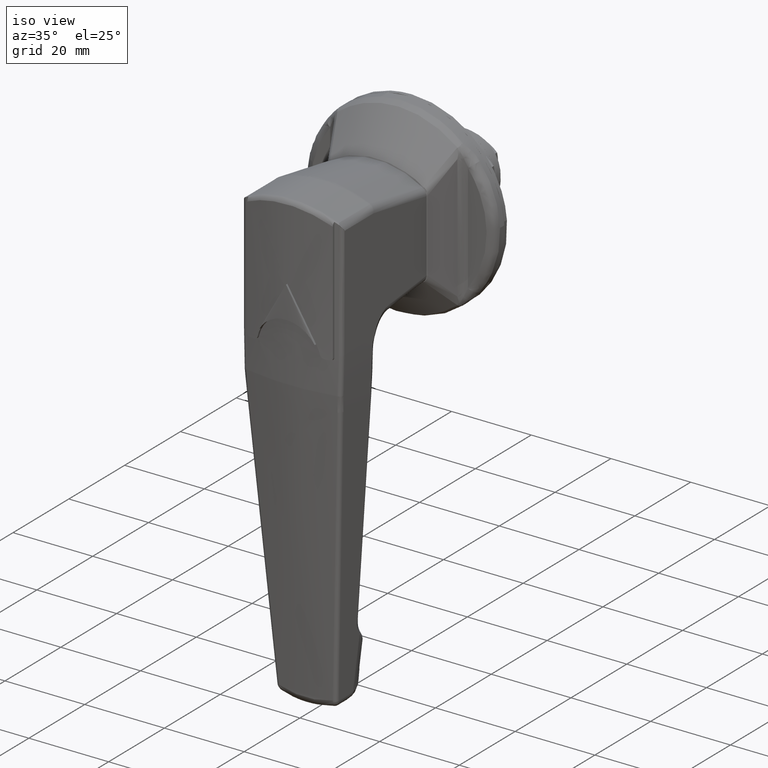
[diagram: clean part render]
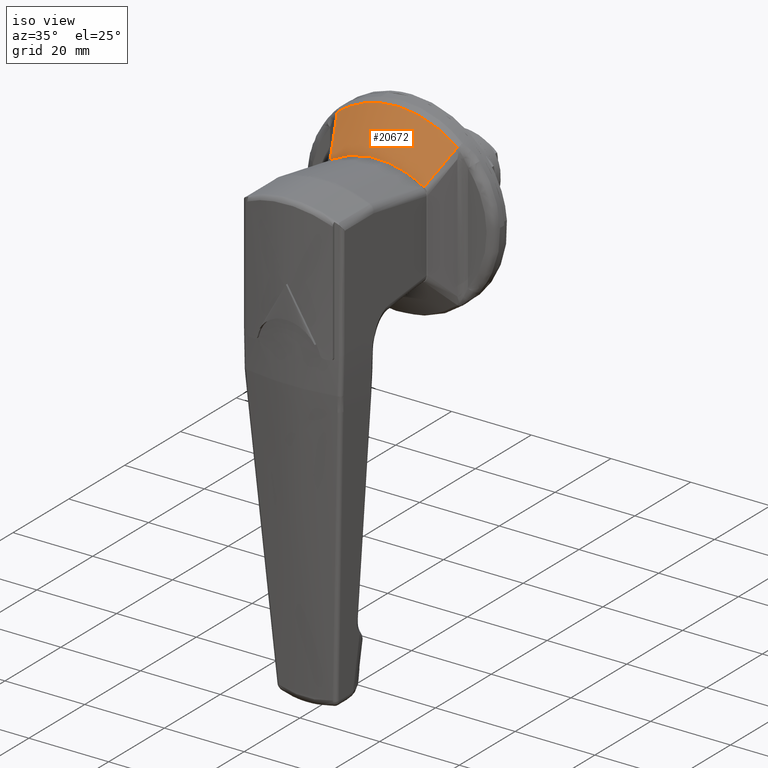
[diagram: same view with one face highlighted and labeled with its STEP entity id]
A machine part, iso view. The second image highlights one B-rep face of the part: STEP entity #20672.
In plain terms, the highlighted face is a freeform B-spline surface patch.
Its self-contained STEP definition (entity closure, byte-faithful):
#17228=CARTESIAN_POINT('',(-12.317423571794420,-11.742579177795520,10.773186300902680));
#17229=VERTEX_POINT('',#17228);
#17426=CARTESIAN_POINT('',(-12.317423571793420,11.742579177780961,10.773186300912499));
#17427=VERTEX_POINT('',#17426);
#17481=CARTESIAN_POINT('',(-12.317423571793420,11.742579177780961,10.773186300912480));
#17482=CARTESIAN_POINT('',(-12.321921307297879,10.860520240749860,11.322452460470220));
#17483=CARTESIAN_POINT('',(-12.325578662781210,9.949014942688306,11.803118988884620));
#17484=CARTESIAN_POINT('',(-12.331659711343731,8.070478089366224,12.635092871386201));
#17485=CARTESIAN_POINT('',(-12.334077562979489,7.103437036236132,12.986378139847030));
#17486=CARTESIAN_POINT('',(-12.336194610551139,5.983743178382404,13.307552710681570));
#17487=CARTESIAN_POINT('',(-12.336421493373271,5.858888674861695,13.342204204442460));
#17488=CARTESIAN_POINT('',(-12.336859048986550,5.608284770445630,13.409422328074839));
#17489=CARTESIAN_POINT('',(-12.337069752711660,5.482504639933909,13.441994153133431));
#17490=CARTESIAN_POINT('',(-12.337676038689670,5.105207246153738,13.536220615238850));
#17491=CARTESIAN_POINT('',(-12.338046654549730,4.853278270121542,13.594513360971780));
#17492=CARTESIAN_POINT('',(-12.339064686496339,4.096313467018519,13.755979314511180));
#17493=CARTESIAN_POINT('',(-12.339618768890370,3.590101573188127,13.845760826779211));
#17494=CARTESIAN_POINT('',(-12.340943189073700,2.066805871487515,14.062042213509820));
#17495=CARTESIAN_POINT('',(-12.341382265058600,1.045090721286919,14.135805461800370));
#17496=CARTESIAN_POINT('',(-12.341389583350249,-0.497092434385676,14.137017111133630));
#17497=CARTESIAN_POINT('',(-12.341281692835810,-1.012763199704537,14.119091320399230));
#17498=CARTESIAN_POINT('',(-12.341006680330070,-1.659384760686913,14.073533295862029));
#17499=CARTESIAN_POINT('',(-12.340944563197100,-1.788939796435680,14.063250452528990));
#17500=CARTESIAN_POINT('',(-12.340806465748720,-2.047507341771729,14.040422508751410));
#17501=CARTESIAN_POINT('',(-12.340578588088951,-2.434502867798404,14.002799197559501));
#17502=CARTESIAN_POINT('',(-12.340288604093830,-2.818961204837026,13.955150978390771));
#17503=CARTESIAN_POINT('',(-12.339182288289560,-4.094957003174656,13.774465676083221));
#17504=CARTESIAN_POINT('',(-12.337859598567080,-5.098155097342642,13.560382340863370));
#17505=CARTESIAN_POINT('',(-12.335076907697930,-6.577292862731655,13.137873484984249));
#17506=CARTESIAN_POINT('',(-12.334012275020189,-7.066041973881075,12.980059910308880));
#17507=CARTESIAN_POINT('',(-12.332189098541861,-7.792627682096576,12.717507293532860));
#17508=CARTESIAN_POINT('',(-12.331543769540691,-8.033731961105060,12.625679252005940));
#17509=CARTESIAN_POINT('',(-12.330173684957110,-8.513727020456962,12.433277390320500));
#17510=CARTESIAN_POINT('',(-12.329448481678160,-8.752757135842554,12.332641786327990));
#17511=CARTESIAN_POINT('',(-12.327915235814430,-9.227951979443985,12.122724838989480));
#17512=CARTESIAN_POINT('',(-12.327108818827940,-9.463629113999277,12.013664815222519));
#17513=CARTESIAN_POINT('',(-12.325411506828940,-9.931126813723937,11.787307537785489));
#17514=CARTESIAN_POINT('',(-12.324520516134241,-10.162958267632449,11.669999115844760));
#17515=CARTESIAN_POINT('',(-12.321716718047560,-10.851462792194271,11.306249432435891));
#17516=CARTESIAN_POINT('',(-12.319672425216240,-11.301552519618671,11.047817630658329));
#17517=CARTESIAN_POINT('',(-12.317423571794420,-11.742579177795520,10.773186300902680));
#17518=B_SPLINE_CURVE_WITH_KNOTS('',3,(#17481,#17482,#17483,#17484,#17485,#17486,#17487,#17488,#17489,#17490,#17491,#17492,#17493,#17494,#17495,#17496,#17497,#17498,#17499,#17500,#17501,#17502,#17503,#17504,#17505,#17506,#17507,#17508,#17509,#17510,#17511,#17512,#17513,#17514,#17515,#17516,#17517),.UNSPECIFIED.,.F.,.U.,(4,2,2,2,2,2,2,2,2,2,1,2,2,2,2,2,2,2,4),(0.0,0.125000000000000,0.250000000000000,0.265625000000000,0.281250000000000,0.312500000000000,0.375000000000000,0.500000000000000,0.562500000000000,0.578125000000000,0.593750000000000,0.625000000000000,0.750000000000000,0.812500000000000,0.843750000000000,0.875000000000000,0.906250000000000,0.937500000000000,1.0),.UNSPECIFIED.);
#17519=EDGE_CURVE('',#17427,#17229,#17518,.T.);
#19419=CARTESIAN_POINT('',(-5.092936571871739,15.064256327151449,17.880553227126750));
#19420=VERTEX_POINT('',#19419);
#19698=CARTESIAN_POINT('',(-5.092936571873490,-15.064256326406150,17.880553227736950));
#19699=VERTEX_POINT('',#19698);
#19716=CARTESIAN_POINT('',(-5.092936571873490,-15.064256326406150,17.880553227736950));
#19717=CARTESIAN_POINT('',(-5.093573879232078,-14.798796385764719,18.096562573407368));
#19718=CARTESIAN_POINT('',(-5.094091626450704,-14.528848008814951,18.306798903010801));
#19719=CARTESIAN_POINT('',(-5.094997048156464,-13.979962741839319,18.715710280743480));
#19720=CARTESIAN_POINT('',(-5.095383115909097,-13.701959241577439,18.913684803095681));
#19721=CARTESIAN_POINT('',(-5.096452156480125,-12.858187276360590,19.487950195946372));
#19722=CARTESIAN_POINT('',(-5.097060267622369,-12.282350103108881,19.844858910536541));
#19723=CARTESIAN_POINT('',(-5.098278485113526,-11.104525559399811,20.507769594687300));
#19724=CARTESIAN_POINT('',(-5.098885670940225,-10.502537438894640,20.813770108760941));
#19725=CARTESIAN_POINT('',(-5.099896533136860,-9.272355058253414,21.374755814613479));
#19726=CARTESIAN_POINT('',(-5.100285548358228,-8.644156980349393,21.629733597591290));
#19727=CARTESIAN_POINT('',(-5.100331876129339,-7.842166178942629,21.915862431379349));
#19728=CARTESIAN_POINT('',(-5.100323813111926,-7.680929494502092,21.971455865755630));
#19729=CARTESIAN_POINT('',(-5.100285135311696,-7.356762143380317,22.079345085166018));
#19730=CARTESIAN_POINT('',(-5.100254476121172,-7.193681891741518,22.131683954828500));
#19731=CARTESIAN_POINT('',(-5.100144934459419,-6.703977136415024,22.283065112714642));
#19732=CARTESIAN_POINT('',(-5.100049409849125,-6.376361573835891,22.376664135280059));
#19733=CARTESIAN_POINT('',(-5.099790927192230,-5.390127493179722,22.635814077893940));
#19734=CARTESIAN_POINT('',(-5.099668316197400,-4.728127391204677,22.779754992497399));
#19735=CARTESIAN_POINT('',(-5.099708972254101,-3.395225388677256,23.010749852628841));
#19736=CARTESIAN_POINT('',(-5.099871270233922,-2.724323409092091,23.097803293326020));
#19737=CARTESIAN_POINT('',(-5.100282114188257,-1.373551249453510,23.214598911629491));
#19738=CARTESIAN_POINT('',(-5.100531667811945,-0.693681654277579,23.244344826655560));
#19739=CARTESIAN_POINT('',(-5.100535231623746,0.333042702680599,23.244741787848760));
#19740=CARTESIAN_POINT('',(-5.100470484504760,0.675035287791229,23.237491649019208));
#19741=CARTESIAN_POINT('',(-5.100294383242916,1.358361197784312,23.208259045229031));
#19742=CARTESIAN_POINT('',(-5.100182943602457,1.699953846475965,23.186256079379749));
#19743=CARTESIAN_POINT('',(-5.099871670320831,2.722321152608336,23.098212467467871));
#19744=CARTESIAN_POINT('',(-5.099708650213096,3.396629040602038,23.010571335409509));
#19745=CARTESIAN_POINT('',(-5.099668504207365,4.731148323988190,22.779166504420349));
#19746=CARTESIAN_POINT('',(-5.099791353676261,5.391358679452426,22.635398665218428));
#19747=CARTESIAN_POINT('',(-5.100133557785923,6.697820136192280,22.292286849585910));
#19748=CARTESIAN_POINT('',(-5.100355034385954,7.344071245275073,22.092942903778940));
#19749=CARTESIAN_POINT('',(-5.100307945141839,8.302865797353615,21.751796402145668));
#19750=CARTESIAN_POINT('',(-5.100209697015547,8.620699050999219,21.631054184745860));
#19751=CARTESIAN_POINT('',(-5.099961758299109,9.094756273129754,21.439220573227189));
#19752=CARTESIAN_POINT('',(-5.099863963676193,9.252326565414313,21.373489300091801));
#19753=CARTESIAN_POINT('',(-5.099645960988978,9.566560918559746,21.238418770570661));
#19754=CARTESIAN_POINT('',(-5.099525883981460,9.723023380521999,21.169162404360289));
#19755=CARTESIAN_POINT('',(-5.098889112557138,10.499885496713590,20.815289656667790));
#19756=CARTESIAN_POINT('',(-5.098277018198655,11.106075175581999,20.507040400123500));
#19757=CARTESIAN_POINT('',(-5.097053792016397,12.288478798751260,19.841265617508611));
#19758=CARTESIAN_POINT('',(-5.096444783712808,12.864691668022759,19.483738319992629));
#19759=CARTESIAN_POINT('',(-5.095020937901411,13.987127373481661,18.719384362904499));
#19760=CARTESIAN_POINT('',(-5.094211150590573,14.533351440712650,18.312559716938800));
#19761=CARTESIAN_POINT('',(-5.092936571871739,15.064256327151449,17.880553227126750));
#19762=B_SPLINE_CURVE_WITH_KNOTS('',3,(#19716,#19717,#19718,#19719,#19720,#19721,#19722,#19723,#19724,#19725,#19726,#19727,#19728,#19729,#19730,#19731,#19732,#19733,#19734,#19735,#19736,#19737,#19738,#19739,#19740,#19741,#19742,#19743,#19744,#19745,#19746,#19747,#19748,#19749,#19750,#19751,#19752,#19753,#19754,#19755,#19756,#19757,#19758,#19759,#19760,#19761),.UNSPECIFIED.,.F.,.U.,(4,2,2,2,2,2,2,2,2,2,2,2,2,2,2,2,2,2,2,2,2,2,4),(0.0,0.031250000000000,0.062500000000000,0.125000000000000,0.187500000000000,0.250000000000000,0.265625000000000,0.281250000000000,0.312500000000000,0.375000000000000,0.437500000000000,0.500000000000000,0.531250000000000,0.562500000000000,0.625000000000000,0.687500000000000,0.750000000000000,0.781250000000000,0.796875000000000,0.812500000000000,0.875000000000000,0.937500000000000,1.0),.UNSPECIFIED.);
#19763=EDGE_CURVE('',#19699,#19420,#19762,.T.);
#20405=CARTESIAN_POINT('',(-12.317423571794430,-11.742579177795511,10.773186300902671));
#20406=CARTESIAN_POINT('',(-11.116651439569811,-12.301555445065970,11.958593017066640));
#20407=CARTESIAN_POINT('',(-9.913685565971512,-12.857269502551020,13.143311846374059));
#20408=CARTESIAN_POINT('',(-7.505085141556311,-13.963988984536000,15.512236129371850));
#20409=CARTESIAN_POINT('',(-6.299438078124222,-14.514986927097670,16.696427672046820));
#20410=CARTESIAN_POINT('',(-5.092936571873496,-15.064256326406159,17.880553227736961));
#20411=B_SPLINE_CURVE_WITH_KNOTS('',3,(#20405,#20406,#20407,#20408,#20409,#20410),.UNSPECIFIED.,.F.,.U.,(4,2,4),(0.0,0.500000000000000,1.0),.UNSPECIFIED.);
#20412=EDGE_CURVE('',#17229,#19699,#20411,.T.);
#20593=CARTESIAN_POINT('',(-5.092936571871751,15.064256327151471,17.880553227126718));
#20594=CARTESIAN_POINT('',(-6.299438078128524,14.514986927714711,16.696427671546289));
#20595=CARTESIAN_POINT('',(-7.505085141564177,13.963988985025409,15.512236128978371));
#20596=CARTESIAN_POINT('',(-9.913685565980160,12.857269502786890,13.143311846187871));
#20597=CARTESIAN_POINT('',(-11.116651439575680,12.301555445175961,11.958593016980689));
#20598=CARTESIAN_POINT('',(-12.317423571793430,11.742579177780961,10.773186300912471));
#20599=B_SPLINE_CURVE_WITH_KNOTS('',3,(#20593,#20594,#20595,#20596,#20597,#20598),.UNSPECIFIED.,.F.,.U.,(4,2,4),(0.0,0.500000000000000,1.0),.UNSPECIFIED.);
#20600=EDGE_CURVE('',#19420,#17427,#20599,.T.);
#20625=CARTESIAN_POINT('',(-12.385665014922880,-12.084953922021880,10.465764843317610));
#20626=CARTESIAN_POINT('',(-12.385665014922880,-10.375562528076950,11.587514382170760));
#20627=CARTESIAN_POINT('',(-12.385665014922880,-8.509060369712609,12.464348007337369));
#20628=CARTESIAN_POINT('',(-12.385665014922880,-4.439564744657995,13.735420415296041));
#20629=CARTESIAN_POINT('',(-12.385665014922880,-2.221437522521274,14.080924509515381));
#20630=CARTESIAN_POINT('',(-12.385665014922880,2.221437522179374,14.080924509549821));
#20631=CARTESIAN_POINT('',(-12.385665014922880,4.439564744321435,13.735420415364880));
#20632=CARTESIAN_POINT('',(-12.385665014922880,8.509060369639638,12.464348007393090));
#20633=CARTESIAN_POINT('',(-12.385665014922880,10.375562528240630,11.587514382112211));
#20634=CARTESIAN_POINT('',(-12.385665014922880,12.084953922377469,10.465764843083971));
#20635=CARTESIAN_POINT('',(-9.940257067816267,-13.134625618554750,12.910373984858960));
#20636=CARTESIAN_POINT('',(-9.940257067816267,-11.318602891776029,14.220817039867750));
#20637=CARTESIAN_POINT('',(-9.940257067816267,-9.303808931051870,15.254626616098390));
#20638=CARTESIAN_POINT('',(-9.940257067816267,-4.872909622366348,16.751607900112202));
#20639=CARTESIAN_POINT('',(-9.940257067816267,-2.437729523797212,17.156909348648121));
#20640=CARTESIAN_POINT('',(-9.940257067816267,2.437729523561341,17.156909348671839));
#20641=CARTESIAN_POINT('',(-9.940257067816267,4.872909622134151,16.751607900159669));
#20642=CARTESIAN_POINT('',(-9.940257067816267,9.303808931098834,15.254626616099671));
#20643=CARTESIAN_POINT('',(-9.940257067816267,11.318602892070890,14.220817039720060));
#20644=CARTESIAN_POINT('',(-9.940257067816267,13.134625619039049,12.910373984496390));
#20645=CARTESIAN_POINT('',(-7.494849120709660,-14.184297315087630,15.354983126400320));
#20646=CARTESIAN_POINT('',(-7.494849120709660,-12.261643255475089,16.854119697564752));
#20647=CARTESIAN_POINT('',(-7.494849120709660,-10.098557492391130,18.044905224859399));
#20648=CARTESIAN_POINT('',(-7.494849120709660,-5.306254500074696,19.767795384928370));
#20649=CARTESIAN_POINT('',(-7.494849120709660,-2.654021525073151,20.232894187780818));
#20650=CARTESIAN_POINT('',(-7.494849120709660,2.654021524943305,20.232894187793882));
#20651=CARTESIAN_POINT('',(-7.494849120709660,5.306254499946875,19.767795384954528));
#20652=CARTESIAN_POINT('',(-7.494849120709660,10.098557492558040,18.044905224806250));
#20653=CARTESIAN_POINT('',(-7.494849120709660,12.261643255901140,16.854119697327921));
#20654=CARTESIAN_POINT('',(-7.494849120709660,14.184297315700650,15.354983125908831));
#20655=CARTESIAN_POINT('',(-5.049441173603045,-15.233969011620500,17.799592267941669));
#20656=CARTESIAN_POINT('',(-5.049441173603045,-13.204683619174160,19.487422355261781));
#20657=CARTESIAN_POINT('',(-5.049441173603046,-10.893306053730390,20.835183833620459));
#20658=CARTESIAN_POINT('',(-5.049441173603046,-5.739599377783042,22.783982869744570));
#20659=CARTESIAN_POINT('',(-5.049441173603046,-2.870313526349089,23.308879026913530));
#20660=CARTESIAN_POINT('',(-5.049441173603046,2.870313526325268,23.308879026915921));
#20661=CARTESIAN_POINT('',(-5.049441173603046,5.739599377759593,22.783982869749369));
#20662=CARTESIAN_POINT('',(-5.049441173603046,10.893306054017240,20.835183833512840));
#20663=CARTESIAN_POINT('',(-5.049441173603046,13.204683619731380,19.487422354935759));
#20664=CARTESIAN_POINT('',(-5.049441173603046,15.233969012362230,17.799592267321231));
#20665=B_SPLINE_SURFACE_WITH_KNOTS('',3,3,((#20625,#20635,#20645,#20655),(#20626,#20636,#20646,#20656),(#20627,#20637,#20647,#20657),(#20628,#20638,#20648,#20658),(#20629,#20639,#20649,#20659),(#20630,#20640,#20650,#20660),(#20631,#20641,#20651,#20661),(#20632,#20642,#20652,#20662),(#20633,#20643,#20653,#20663),(#20634,#20644,#20654,#20664)),.UNSPECIFIED.,.F.,.F.,.U.,(4,2,2,2,4),(4,4),(0.0,7.920086829441518,16.530531661646229,25.140976493850939,33.061063324283353),(0.0,11.759973410871609),.UNSPECIFIED.);
#20666=ORIENTED_EDGE('',*,*,#20600,.T.);
#20667=ORIENTED_EDGE('',*,*,#17519,.T.);
#20668=ORIENTED_EDGE('',*,*,#20412,.T.);
#20669=ORIENTED_EDGE('',*,*,#19763,.T.);
#20670=EDGE_LOOP('',(#20666,#20667,#20668,#20669));
#20671=FACE_OUTER_BOUND('',#20670,.T.);
#20672=ADVANCED_FACE('',(#20671),#20665,.F.);